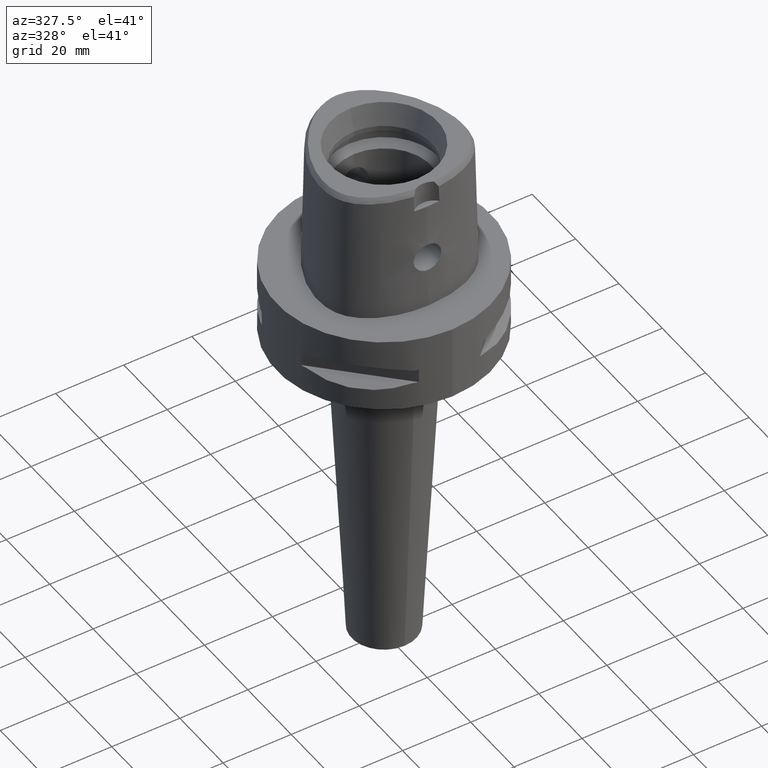
[diagram: clean part render]
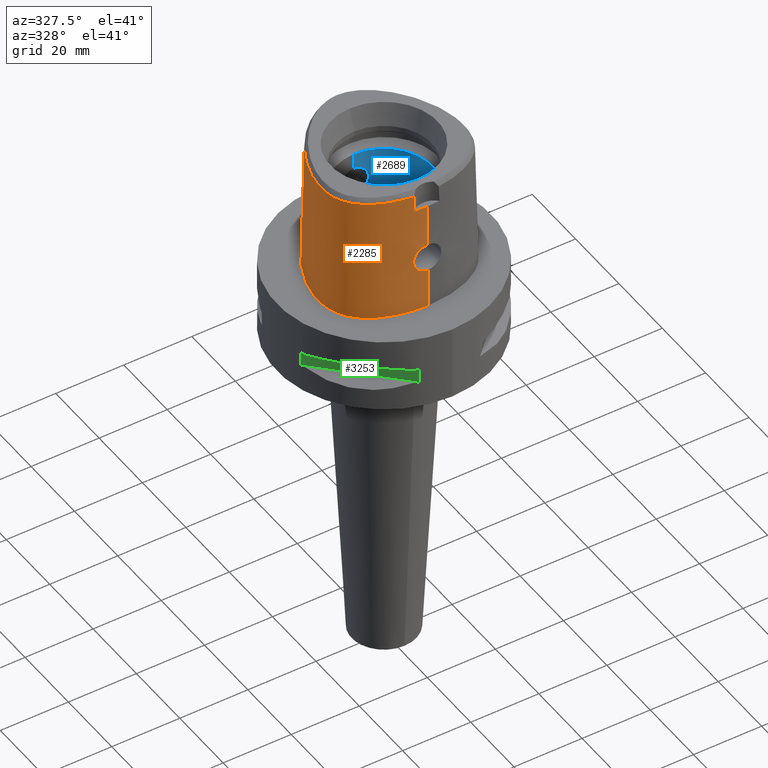
[diagram: same view with three faces highlighted in distinct colors, each labeled with its STEP entity id]
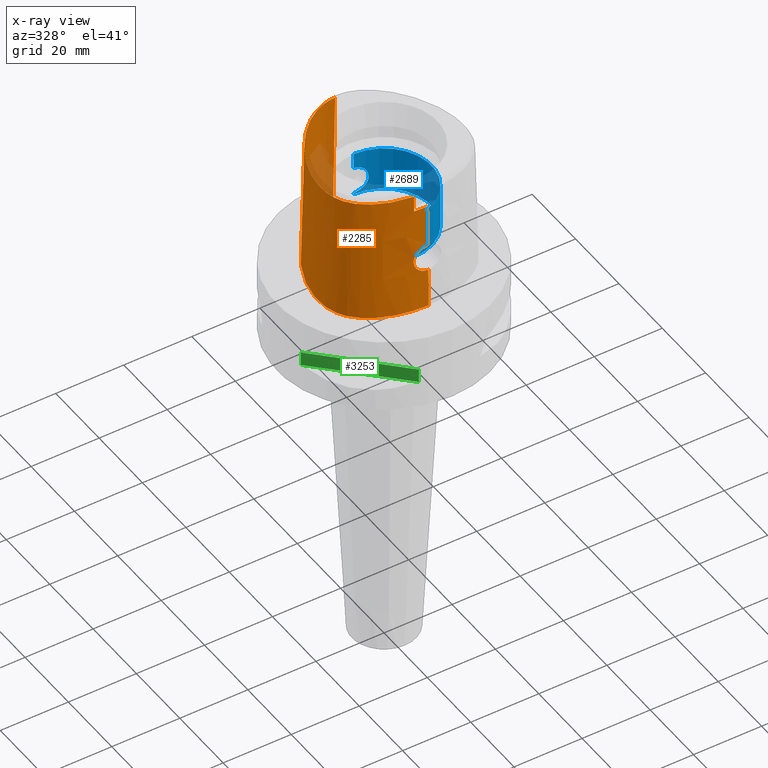
[diagram: x-ray of the same camera — body ghosted, the three highlighted faces saturated]
A machine part, auxiliary view with three faces highlighted in distinct colors.
The next image is the same camera in x-ray (body ghosted, the three faces saturated) — at least one of them is partly hidden behind the body in this view.
Their STEP definitions:

[orange] entity #2285 — the highlighted face is a freeform B-spline surface patch.
#193=CARTESIAN_POINT('',(-3.637738201364E0,-1.956971413237E1,3.652186244848E1));
#194=CARTESIAN_POINT('',(-4.537193548749E0,-1.947388025628E1,3.652183529940E1));
#195=CARTESIAN_POINT('',(-6.263949327300E0,-1.921705533810E1,3.652188275785E1));
#196=CARTESIAN_POINT('',(-8.618348519195E0,-1.866798246127E1,3.652185435558E1));
#197=CARTESIAN_POINT('',(-1.060495987192E1,-1.803591213796E1,3.652187576284E1));
#198=CARTESIAN_POINT('',(-1.237067197268E1,-1.732224180535E1,3.652186578478E1));
#199=CARTESIAN_POINT('',(-1.397879260867E1,-1.651413441729E1,3.652186958408E1));
#200=CARTESIAN_POINT('',(-1.542598734321E1,-1.561794019751E1,3.652186521884E1));
#201=CARTESIAN_POINT('',(-1.666737764108E1,-1.467523813454E1,3.652187203924E1));
#202=CARTESIAN_POINT('',(-1.770437627941E1,-1.371528573410E1,3.652187045980E1));
#203=CARTESIAN_POINT('',(-1.857115067472E1,-1.273500788223E1,3.652185855755E1));
#204=CARTESIAN_POINT('',(-1.928442601399E1,-1.174002544139E1,3.652191157147E1));
#205=CARTESIAN_POINT('',(-1.987313581598E1,-1.070549049556E1,3.652186026166E1));
#206=CARTESIAN_POINT('',(-2.036758263126E1,-9.577945777402E0,3.652186701632E1));
#207=CARTESIAN_POINT('',(-2.077211132407E1,-8.321210405634E0,3.652186884943E1));
#208=CARTESIAN_POINT('',(-2.107213951127E1,-6.924739094355E0,3.652186972068E1));
#209=CARTESIAN_POINT('',(-2.125235437077E1,-5.361729912021E0,3.652186572500E1));
#210=CARTESIAN_POINT('',(-2.128712501331E1,-3.639679101091E0,3.652187070383E1));
#211=CARTESIAN_POINT('',(-2.116359888799E1,-1.830362717074E0,3.652186160276E1));
#212=CARTESIAN_POINT('',(-2.087920510343E1,6.599433238334E-2,3.652187692161E1));
#213=CARTESIAN_POINT('',(-2.040877652441E1,2.125525189010E0,3.652185890485E1));
#214=CARTESIAN_POINT('',(-1.967274178354E1,4.473787407312E0,3.652187262732E1));
#215=CARTESIAN_POINT('',(-1.866988253956E1,6.938059692952E0,3.652184673805E1));
#216=CARTESIAN_POINT('',(-1.743962506899E1,9.380231689227E0,3.652185708733E1));
#217=CARTESIAN_POINT('',(-1.600917705974E1,1.173321275189E1,3.652187236541E1));
#218=CARTESIAN_POINT('',(-1.442910686964E1,1.391946669374E1,3.652185993652E1));
#219=CARTESIAN_POINT('',(-1.275797945687E1,1.587321322918E1,3.652186706717E1));
#220=CARTESIAN_POINT('',(-1.114966267944E1,1.746960453198E1,3.652186916644E1));
#221=CARTESIAN_POINT('',(-9.635940589058E0,1.875774927202E1,3.652186756368E1));
#222=CARTESIAN_POINT('',(-8.129315151765E0,1.984871666943E1,3.652186494854E1));
#223=CARTESIAN_POINT('',(-6.628467072847E0,2.075200188891E1,3.652187174651E1));
#224=CARTESIAN_POINT('',(-5.160069573094E0,2.146250909323E1,3.652187196217E1));
#225=CARTESIAN_POINT('',(-3.761043276653E0,2.198030969111E1,3.652186330563E1));
#226=CARTESIAN_POINT('',(-2.442989062411E0,2.232534208061E1,3.652187666147E1));
#227=CARTESIAN_POINT('',(-1.187263974777E0,2.252095610630E1,3.652179140267E1));
#228=CARTESIAN_POINT('',(-3.966403976592E-1,2.256201468012E1,3.652186680743E1));
#229=CARTESIAN_POINT('',(-1.721538145818E-11,2.256201468012E1,
3.652186680744E1));
#241=CARTESIAN_POINT('',(-3.637738201364E0,-1.956971413237E1,3.652186244848E1));
#242=CARTESIAN_POINT('',(-3.649042726833E0,-1.958170231834E1,3.599710491520E1));
#243=CARTESIAN_POINT('',(-3.671106183707E0,-1.960533297179E1,3.494764182412E1));
#244=CARTESIAN_POINT('',(-3.704089539557E0,-1.964135162194E1,3.337369009748E1));
#245=CARTESIAN_POINT('',(-3.726005756395E0,-1.966575923510E1,3.232454432382E1));
#246=CARTESIAN_POINT('',(-3.736696126116E0,-1.967778323257E1,3.18E1));
#251=DIRECTION('',(-1.665636293796E-9,-2.499140646182E-2,-9.996876660253E-1));
#252=VECTOR('',#251,1.225382733632E1);
#253=CARTESIAN_POINT('',(2.041042029991E-8,-1.988004246002E1,3.180000004972E1));
#254=LINE('',#253,#252);
#258=CARTESIAN_POINT('',(0.E0,-2.018628283969E1,1.955E1));
#259=CARTESIAN_POINT('',(-3.535025939874E-1,-2.018628283969E1,1.955E1));
#260=CARTESIAN_POINT('',(-1.060473937797E0,-2.017767216830E1,1.945681925277E1));
#261=CARTESIAN_POINT('',(-2.047701543701E0,-2.014309980526E1,1.904804674692E1));
#262=CARTESIAN_POINT('',(-2.897566485544E0,-2.009784253651E1,1.839607694624E1));
#263=CARTESIAN_POINT('',(-3.549651586842E0,-2.005725832781E1,1.754541454944E1));
#264=CARTESIAN_POINT('',(-3.958413413604E0,-2.003677385322E1,1.655463469819E1));
#265=CARTESIAN_POINT('',(-4.096145834777E0,-2.004693977811E1,1.549746639839E1));
#266=CARTESIAN_POINT('',(-3.956998654836E0,-2.009014971096E1,1.444056005517E1));
#267=CARTESIAN_POINT('',(-3.548403793674E0,-2.016023887783E1,1.345303113610E1));
#268=CARTESIAN_POINT('',(-2.897581606987E0,-2.024315417861E1,1.260386165506E1));
#269=CARTESIAN_POINT('',(-2.045567629948E0,-2.032097908031E1,1.195043067914E1));
#270=CARTESIAN_POINT('',(-1.056750709433E0,-2.037569617876E1,1.154226914409E1));
#271=CARTESIAN_POINT('',(-3.518691721555E-1,-2.038876923348E1,1.145E1));
#272=CARTESIAN_POINT('',(-9.433993878922E-13,-2.038876923348E1,1.145E1));
#277=DIRECTION('',(-5.771733058852E-13,-2.499051295390E-2,-9.996876883619E-1));
#278=VECTOR('',#277,1.145357708542E1);
#279=CARTESIAN_POINT('',(-9.433993878922E-13,-2.038876923348E1,1.145E1));
#280=LINE('',#279,#278);
#342=CARTESIAN_POINT('',(4.563156641447E-11,2.347499999999E1,
5.514107688972E-14));
#343=CARTESIAN_POINT('',(-4.146852565207E-1,2.347499999999E1,
5.514107688972E-14));
#344=CARTESIAN_POINT('',(-1.261915149561E0,2.343213451227E1,
-2.559106284495E-14));
#345=CARTESIAN_POINT('',(-2.581460452462E0,2.322967044429E1,0.E0));
#346=CARTESIAN_POINT('',(-3.964403221928E0,2.287404406542E1,0.E0));
#347=CARTESIAN_POINT('',(-5.417034934790E0,2.234557740741E1,0.E0));
#348=CARTESIAN_POINT('',(-6.944801218035E0,2.162011250783E1,0.E0));
#349=CARTESIAN_POINT('',(-8.547637702665E0,2.067041451708E1,0.E0));
#350=CARTESIAN_POINT('',(-1.021725188597E1,1.946946503500E1,0.E0));
#351=CARTESIAN_POINT('',(-1.193424410327E1,1.799512566976E1,0.E0));
#352=CARTESIAN_POINT('',(-1.366368346013E1,1.623921716908E1,0.E0));
#353=CARTESIAN_POINT('',(-1.535729558670E1,1.421339154148E1,0.E0));
#354=CARTESIAN_POINT('',(-1.695352052941E1,1.195973010079E1,0.E0));
#355=CARTESIAN_POINT('',(-1.839120765518E1,9.545070948090E0,0.E0));
#356=CARTESIAN_POINT('',(-1.962307345157E1,7.045259246555E0,0.E0));
#357=CARTESIAN_POINT('',(-2.061579824793E1,4.546574757563E0,0.E0));
#358=CARTESIAN_POINT('',(-2.135626431495E1,2.129350844778E0,0.E0));
#359=CARTESIAN_POINT('',(-2.185285452040E1,-1.499599148027E-1,0.E0));
#360=CARTESIAN_POINT('',(-2.212727618345E1,-2.257747990068E0,0.E0));
#361=CARTESIAN_POINT('',(-2.220770549127E1,-4.183060399524E0,0.E0));
#362=CARTESIAN_POINT('',(-2.212245961432E1,-5.927659577005E0,0.E0));
#363=CARTESIAN_POINT('',(-2.189663652646E1,-7.503783103471E0,0.E0));
#364=CARTESIAN_POINT('',(-2.155071218654E1,-8.926832611984E0,0.E0));
#365=CARTESIAN_POINT('',(-2.109812849038E1,-1.021628808504E1,0.E0));
#366=CARTESIAN_POINT('',(-2.055277033994E1,-1.138063298656E1,0.E0));
#367=CARTESIAN_POINT('',(-1.990340162624E1,-1.246179278733E1,0.E0));
#368=CARTESIAN_POINT('',(-1.912185559762E1,-1.350622775472E1,0.E0));
#369=CARTESIAN_POINT('',(-1.817671397480E1,-1.453624124549E1,0.E0));
#370=CARTESIAN_POINT('',(-1.705680612492E1,-1.553852109048E1,0.E0));
#371=CARTESIAN_POINT('',(-1.573604956120E1,-1.651128824165E1,0.E0));
#372=CARTESIAN_POINT('',(-1.419106097246E1,-1.744213430450E1,0.E0));
#373=CARTESIAN_POINT('',(-1.240026832212E1,-1.831297475591E1,0.E0));
#374=CARTESIAN_POINT('',(-1.035075458277E1,-1.909801402975E1,0.E0));
#375=CARTESIAN_POINT('',(-8.044393403476E0,-1.976486427995E1,0.E0));
#376=CARTESIAN_POINT('',(-5.509742625065E0,-2.027740112967E1,0.E0));
#377=CARTESIAN_POINT('',(-2.794080716861E0,-2.060118766449E1,
-2.693072922207E-14));
#378=CARTESIAN_POINT('',(-9.426230636249E-1,-2.0675E1,5.802765675374E-14));
#379=CARTESIAN_POINT('',(-7.554098338496E-12,-2.0675E1,5.802765675374E-14));
#995=DIRECTION('',(1.720265844315E-12,2.499051290963E-2,-9.996876883630E-1));
#996=VECTOR('',#995,3.653327657485E1);
#997=CARTESIAN_POINT('',(-1.721538145818E-11,2.256201468012E1,
3.652186680744E1));
#998=LINE('',#997,#996);
#1012=CARTESIAN_POINT('',(2.041042029991E-8,-1.988004246002E1,
3.180000004972E1));
#1013=CARTESIAN_POINT('',(-4.161790280178E-1,-1.988004245993E1,
3.180000004972E1));
#1014=CARTESIAN_POINT('',(-1.247889105566E0,-1.986528007158E1,
3.179999997680E1));
#1015=CARTESIAN_POINT('',(-2.494485023973E0,-1.979770229313E1,
3.180000000663E1));
#1016=CARTESIAN_POINT('',(-3.322953884429E0,-1.972294683092E1,3.18E1));
#1017=CARTESIAN_POINT('',(-3.736696126116E0,-1.967778323257E1,3.18E1));
#1461=CARTESIAN_POINT('',(-3.736722311399E0,-1.967781602444E1,3.18E1));
#1462=VERTEX_POINT('',#1461);
#1463=VERTEX_POINT('',#241);
#1464=CARTESIAN_POINT('',(-1.721538145818E-11,2.256201468012E1,
3.652186680744E1));
#1465=VERTEX_POINT('',#1464);
#1466=VERTEX_POINT('',#342);
#1467=VERTEX_POINT('',#379);
#1468=VERTEX_POINT('',#1012);
#1469=CARTESIAN_POINT('',(0.E0,-2.018628283969E1,1.955E1));
#1470=VERTEX_POINT('',#1469);
#1471=VERTEX_POINT('',#272);
#2168=CARTESIAN_POINT('',(7.234356454210E-1,2.347140593178E1,
-7.304378836923E-1));
#2169=CARTESIAN_POINT('',(7.042335227556E-1,2.315549812288E1,1.193048543364E1));
#2170=CARTESIAN_POINT('',(6.850314000902E-1,2.283959031397E1,2.459140875097E1));
#2171=CARTESIAN_POINT('',(6.658292774247E-1,2.252368250506E1,3.725233206831E1));
#2172=CARTESIAN_POINT('',(4.823619559444E-1,2.348603818724E1,
-7.304378836923E-1));
#2173=CARTESIAN_POINT('',(4.696382013995E-1,2.316972797308E1,1.193048543364E1));
#2174=CARTESIAN_POINT('',(4.569144468547E-1,2.285341775891E1,2.459140875097E1));
#2175=CARTESIAN_POINT('',(4.441906923099E-1,2.253710754475E1,3.725233206831E1));
#2176=CARTESIAN_POINT('',(-6.149727129627E-1,2.351889465440E1,
-7.304378836923E-1));
#2177=CARTESIAN_POINT('',(-5.985508142242E-1,2.320171269472E1,
1.193048543364E1));
#2178=CARTESIAN_POINT('',(-5.821289154857E-1,2.288453073505E1,
2.459140875097E1));
#2179=CARTESIAN_POINT('',(-5.657070167472E-1,2.256734877538E1,
3.725233206831E1));
#2180=CARTESIAN_POINT('',(-2.568271206828E0,2.331126238893E1,
-7.304378836923E-1));
#2181=CARTESIAN_POINT('',(-2.503210889068E0,2.299958931414E1,1.193048543364E1));
#2182=CARTESIAN_POINT('',(-2.438150571309E0,2.268791623936E1,2.459140875097E1));
#2183=CARTESIAN_POINT('',(-2.373090253549E0,2.237624316457E1,3.725233206831E1));
#2184=CARTESIAN_POINT('',(-5.105252918009E0,2.254305024715E1,
-7.304378836923E-1));
#2185=CARTESIAN_POINT('',(-4.987110638771E0,2.224795273405E1,1.193048543364E1));
#2186=CARTESIAN_POINT('',(-4.868968359533E0,2.195285522095E1,2.459140875097E1));
#2187=CARTESIAN_POINT('',(-4.750826080296E0,2.165775770785E1,3.725233206831E1));
#2188=CARTESIAN_POINT('',(-7.580410842742E0,2.133037926732E1,
-7.304378836923E-1));
#2189=CARTESIAN_POINT('',(-7.420053097307E0,2.105635738375E1,1.193048543364E1));
#2190=CARTESIAN_POINT('',(-7.259695351873E0,2.078233550017E1,2.459140875097E1));
#2191=CARTESIAN_POINT('',(-7.099337606439E0,2.050831361659E1,3.725233206831E1));
#2192=CARTESIAN_POINT('',(-1.075753574145E1,1.918839676145E1,
-7.304378836923E-1));
#2193=CARTESIAN_POINT('',(-1.055288400653E1,1.894467581299E1,1.193048543364E1));
#2194=CARTESIAN_POINT('',(-1.034823227161E1,1.870095486453E1,2.459140875097E1));
#2195=CARTESIAN_POINT('',(-1.014358053668E1,1.845723391608E1,3.725233206831E1));
#2196=CARTESIAN_POINT('',(-1.442198652394E1,1.565278600583E1,
-7.304378836923E-1));
#2197=CARTESIAN_POINT('',(-1.417879752835E1,1.544741190468E1,1.193048543364E1));
#2198=CARTESIAN_POINT('',(-1.393560853276E1,1.524203780353E1,2.459140875097E1));
#2199=CARTESIAN_POINT('',(-1.369241953717E1,1.503666370237E1,3.725233206831E1));
#2200=CARTESIAN_POINT('',(-1.808416038762E1,1.044089487470E1,
-7.304378836923E-1));
#2201=CARTESIAN_POINT('',(-1.780867301356E1,1.028184204664E1,1.193048543364E1));
#2202=CARTESIAN_POINT('',(-1.753318563950E1,1.012278921858E1,2.459140875097E1));
#2203=CARTESIAN_POINT('',(-1.725769826544E1,9.963736390518E0,3.725233206831E1));
#2204=CARTESIAN_POINT('',(-2.076670355397E1,4.663413655735E0,
-7.304378836923E-1));
#2205=CARTESIAN_POINT('',(-2.046725037104E1,4.555493623004E0,1.193048543364E1));
#2206=CARTESIAN_POINT('',(-2.016779718812E1,4.447573590274E0,2.459140875097E1));
#2207=CARTESIAN_POINT('',(-1.986834400520E1,4.339653557543E0,3.725233206831E1));
#2208=CARTESIAN_POINT('',(-2.199640702100E1,-2.778990153336E-1,
-7.304378836923E-1));
#2209=CARTESIAN_POINT('',(-2.168301094001E1,-3.332744162193E-1,
1.193048543364E1));
#2210=CARTESIAN_POINT('',(-2.136961485902E1,-3.886498171051E-1,
2.459140875097E1));
#2211=CARTESIAN_POINT('',(-2.105621877803E1,-4.440252179909E-1,
3.725233206831E1));
#2212=CARTESIAN_POINT('',(-2.226285557050E1,-4.100361500019E0,
-7.304378836923E-1));
#2213=CARTESIAN_POINT('',(-2.194536970998E1,-4.102220499691E0,
1.193048543364E1));
#2214=CARTESIAN_POINT('',(-2.162788384945E1,-4.104079499363E0,
2.459140875097E1));
#2215=CARTESIAN_POINT('',(-2.131039798893E1,-4.105938499035E0,
3.725233206831E1));
#2216=CARTESIAN_POINT('',(-2.207548129619E1,-6.850245536214E0,
-7.304378836923E-1));
#2217=CARTESIAN_POINT('',(-2.176083704478E1,-6.805026033501E0,
1.193048543364E1));
#2218=CARTESIAN_POINT('',(-2.144619279338E1,-6.759806530788E0,
2.459140875097E1));
#2219=CARTESIAN_POINT('',(-2.113154854198E1,-6.714587028075E0,
3.725233206831E1));
#2220=CARTESIAN_POINT('',(-2.157281239753E1,-9.001246196645E0,
-7.304378836923E-1));
#2221=CARTESIAN_POINT('',(-2.126836734855E1,-8.910752225629E0,
1.193048543364E1));
#2222=CARTESIAN_POINT('',(-2.096392229957E1,-8.820258254612E0,
2.459140875097E1));
#2223=CARTESIAN_POINT('',(-2.065947725059E1,-8.729764283595E0,
3.725233206831E1));
#2224=CARTESIAN_POINT('',(-2.094844326333E1,-1.061175397207E1,
-7.304378836923E-1));
#2225=CARTESIAN_POINT('',(-2.065879041560E1,-1.048283616462E1,
1.193048543364E1));
#2226=CARTESIAN_POINT('',(-2.036913756787E1,-1.035391835717E1,
2.459140875097E1));
#2227=CARTESIAN_POINT('',(-2.007948472015E1,-1.022500054972E1,
3.725233206831E1));
#2228=CARTESIAN_POINT('',(-2.036546124956E1,-1.175800453463E1,
-7.304378836923E-1));
#2229=CARTESIAN_POINT('',(-2.009084467378E1,-1.159945458008E1,
1.193048543364E1));
#2230=CARTESIAN_POINT('',(-1.981622809799E1,-1.144090462553E1,
2.459140875097E1));
#2231=CARTESIAN_POINT('',(-1.954161152221E1,-1.128235467098E1,
3.725233206831E1));
#2232=CARTESIAN_POINT('',(-1.966427015040E1,-1.283600704974E1,
-7.304378836923E-1));
#2233=CARTESIAN_POINT('',(-1.940779762651E1,-1.264961922928E1,
1.193048543364E1));
#2234=CARTESIAN_POINT('',(-1.915132510263E1,-1.246323140882E1,
2.459140875097E1));
#2235=CARTESIAN_POINT('',(-1.889485257874E1,-1.227684358836E1,
3.725233206831E1));
#2236=CARTESIAN_POINT('',(-1.858171406959E1,-1.418198046903E1,
-7.304378836923E-1));
#2237=CARTESIAN_POINT('',(-1.835112148799E1,-1.396357030797E1,
1.193048543364E1));
#2238=CARTESIAN_POINT('',(-1.812052890639E1,-1.374516014692E1,
2.459140875097E1));
#2239=CARTESIAN_POINT('',(-1.788993632479E1,-1.352674998587E1,
3.725233206831E1));
#2240=CARTESIAN_POINT('',(-1.697022731427E1,-1.569280483517E1,
-7.304378836923E-1));
#2241=CARTESIAN_POINT('',(-1.677374378320E1,-1.544292467129E1,
1.193048543364E1));
#2242=CARTESIAN_POINT('',(-1.657726025214E1,-1.519304450741E1,
2.459140875097E1));
#2243=CARTESIAN_POINT('',(-1.638077672108E1,-1.494316434353E1,
3.725233206831E1));
#2244=CARTESIAN_POINT('',(-1.468244497373E1,-1.723001773474E1,
-7.304378836923E-1));
#2245=CARTESIAN_POINT('',(-1.452531259520E1,-1.695413741586E1,
1.193048543364E1));
#2246=CARTESIAN_POINT('',(-1.436818021668E1,-1.667825709698E1,
2.459140875097E1));
#2247=CARTESIAN_POINT('',(-1.421104783816E1,-1.640237677809E1,
3.725233206831E1));
#2248=CARTESIAN_POINT('',(-1.123887130428E1,-1.891049776497E1,
-7.304378836923E-1));
#2249=CARTESIAN_POINT('',(-1.113012652954E1,-1.861140108889E1,
1.193048543364E1));
#2250=CARTESIAN_POINT('',(-1.102138175480E1,-1.831230441280E1,
2.459140875097E1));
#2251=CARTESIAN_POINT('',(-1.091263698006E1,-1.801320773672E1,
3.725233206831E1));
#2252=CARTESIAN_POINT('',(-6.344715577603E0,-2.031619965472E1,
-7.304378836923E-1));
#2253=CARTESIAN_POINT('',(-6.288476565481E0,-2.000290563965E1,
1.193048543364E1));
#2254=CARTESIAN_POINT('',(-6.232237553359E0,-1.968961162457E1,
2.459140875097E1));
#2255=CARTESIAN_POINT('',(-6.175998541237E0,-1.937631760950E1,
3.725233206831E1));
#2256=CARTESIAN_POINT('',(-1.886862292502E0,-2.071358860422E1,
-7.304378836923E-1));
#2257=CARTESIAN_POINT('',(-1.870070487669E0,-2.039691384293E1,
1.193048543364E1));
#2258=CARTESIAN_POINT('',(-1.853278682835E0,-2.008023908163E1,
2.459140875097E1));
#2259=CARTESIAN_POINT('',(-1.836486878001E0,-1.976356432033E1,
3.725233206831E1));
#2260=CARTESIAN_POINT('',(4.560943670760E-1,-2.069106768990E1,
-7.304378836923E-1));
#2261=CARTESIAN_POINT('',(4.520368071274E-1,-2.037458452300E1,
1.193048543364E1));
#2262=CARTESIAN_POINT('',(4.479792471788E-1,-2.005810135610E1,
2.459140875097E1));
#2263=CARTESIAN_POINT('',(4.439216872302E-1,-1.974161818921E1,
3.725233206831E1));
#2264=CARTESIAN_POINT('',(6.840430854547E-1,-2.068668155497E1,
-7.304378836923E-1));
#2265=CARTESIAN_POINT('',(6.779535327048E-1,-2.037023514139E1,
1.193048543364E1));
#2266=CARTESIAN_POINT('',(6.718639799549E-1,-2.005378872781E1,
2.459140875097E1));
#2267=CARTESIAN_POINT('',(6.657744272050E-1,-1.973734231423E1,
3.725233206831E1));
#2268=B_SPLINE_SURFACE_WITH_KNOTS('',3,3,((#2168,#2169,#2170,#2171),(#2172,
#2173,#2174,#2175),(#2176,#2177,#2178,#2179),(#2180,#2181,#2182,#2183),(#2184,
#2185,#2186,#2187),(#2188,#2189,#2190,#2191),(#2192,#2193,#2194,#2195),(#2196,
#2197,#2198,#2199),(#2200,#2201,#2202,#2203),(#2204,#2205,#2206,#2207),(#2208,
#2209,#2210,#2211),(#2212,#2213,#2214,#2215),(#2216,#2217,#2218,#2219),(#2220,
#2221,#2222,#2223),(#2224,#2225,#2226,#2227),(#2228,#2229,#2230,#2231),(#2232,
#2233,#2234,#2235),(#2236,#2237,#2238,#2239),(#2240,#2241,#2242,#2243),(#2244,
#2245,#2246,#2247),(#2248,#2249,#2250,#2251),(#2252,#2253,#2254,#2255),(#2256,
#2257,#2258,#2259),(#2260,#2261,#2262,#2263),(#2264,#2265,#2266,#2267)),
.UNSPECIFIED.,.F.,.F.,.F.,(4,1,1,1,1,1,1,1,1,1,1,1,1,1,1,1,1,1,1,1,1,1,4),(4,4),
(-1.173777939046E-2,0.E0,4.166666666737E-2,8.333333333399E-2,1.250000000006E-1,
1.666666666673E-1,2.500000000005E-1,3.333333333337E-1,4.166666666670E-1,
5.000000000003E-1,5.416666666669E-1,5.833333333335E-1,6.250000000001E-1,
6.458333333334E-1,6.666666666668E-1,6.875000000001E-1,7.083333333333E-1,7.5E-1,
7.916666666667E-1,8.333333333332E-1,9.166666666665E-1,1.E0,1.008985696609E0),(
-3.979829035772E-9,1.000000202971E0),.UNSPECIFIED.);
#2270=ORIENTED_EDGE('',*,*,#2269,.F.);
#2272=ORIENTED_EDGE('',*,*,#2271,.F.);
#2273=ORIENTED_EDGE('',*,*,#2161,.F.);
#2274=ORIENTED_EDGE('',*,*,#1646,.T.);
#2276=ORIENTED_EDGE('',*,*,#2275,.F.);
#2278=ORIENTED_EDGE('',*,*,#2277,.T.);
#2280=ORIENTED_EDGE('',*,*,#2279,.T.);
#2282=ORIENTED_EDGE('',*,*,#2281,.T.);
#2283=EDGE_LOOP('',(#2270,#2272,#2273,#2274,#2276,#2278,#2280,#2282));
#2284=FACE_OUTER_BOUND('',#2283,.F.);
#230=B_SPLINE_CURVE_WITH_KNOTS('',3,(#193,#194,#195,#196,#197,#198,#199,#200,
#201,#202,#203,#204,#205,#206,#207,#208,#209,#210,#211,#212,#213,#214,#215,#216,
#217,#218,#219,#220,#221,#222,#223,#224,#225,#226,#227,#228,#229),.UNSPECIFIED.,
.F.,.F.,(4,1,1,1,1,1,1,1,1,1,1,1,1,1,1,1,1,1,1,1,1,1,1,1,1,1,1,1,1,1,1,1,1,1,4),
(0.E0,2.941176470588E-2,5.882352941176E-2,8.823529411765E-2,1.176470588235E-1,
1.470588235294E-1,1.764705882353E-1,2.058823529412E-1,2.352941176471E-1,
2.647058823529E-1,2.941176470588E-1,3.235294117647E-1,3.529411764706E-1,
3.823529411765E-1,4.117647058824E-1,4.411764705882E-1,4.705882352941E-1,5.E-1,
5.294117647059E-1,5.588235294118E-1,5.882352941176E-1,6.176470588235E-1,
6.470588235294E-1,6.764705882353E-1,7.058823529412E-1,7.352941176471E-1,
7.647058823529E-1,7.941176470588E-1,8.235294117647E-1,8.529411764706E-1,
8.823529411765E-1,9.117647058824E-1,9.411764705882E-1,9.705882352941E-1,1.E0),
.UNSPECIFIED.);
#247=B_SPLINE_CURVE_WITH_KNOTS('',3,(#241,#242,#243,#244,#245,#246),
.UNSPECIFIED.,.F.,.F.,(4,1,1,4),(0.E0,3.333333333333E-1,6.666666666667E-1,1.E0),
.UNSPECIFIED.);
#273=B_SPLINE_CURVE_WITH_KNOTS('',3,(#258,#259,#260,#261,#262,#263,#264,#265,
#266,#267,#268,#269,#270,#271,#272),.UNSPECIFIED.,.F.,.F.,(4,1,1,1,1,1,1,1,1,1,
1,1,4),(0.E0,8.333333333333E-2,1.666666666667E-1,2.5E-1,3.333333333333E-1,
4.166666666667E-1,5.E-1,5.833333333333E-1,6.666666666667E-1,7.5E-1,
8.333333333333E-1,9.166666666667E-1,1.E0),.UNSPECIFIED.);
#380=B_SPLINE_CURVE_WITH_KNOTS('',3,(#342,#343,#344,#345,#346,#347,#348,#349,
#350,#351,#352,#353,#354,#355,#356,#357,#358,#359,#360,#361,#362,#363,#364,#365,
#366,#367,#368,#369,#370,#371,#372,#373,#374,#375,#376,#377,#378,#379),
.UNSPECIFIED.,.F.,.F.,(4,1,1,1,1,1,1,1,1,1,1,1,1,1,1,1,1,1,1,1,1,1,1,1,1,1,1,1,
1,1,1,1,1,1,1,4),(0.E0,2.857142857143E-2,5.714285714286E-2,8.571428571429E-2,
1.142857142857E-1,1.428571428571E-1,1.714285714286E-1,2.E-1,2.285714285714E-1,
2.571428571429E-1,2.857142857143E-1,3.142857142857E-1,3.428571428571E-1,
3.714285714286E-1,4.E-1,4.285714285714E-1,4.571428571429E-1,4.857142857143E-1,
5.142857142857E-1,5.428571428571E-1,5.714285714286E-1,6.E-1,6.285714285714E-1,
6.571428571429E-1,6.857142857143E-1,7.142857142857E-1,7.428571428571E-1,
7.714285714286E-1,8.E-1,8.285714285714E-1,8.571428571429E-1,8.857142857143E-1,
9.142857142857E-1,9.428571428571E-1,9.714285714286E-1,1.E0),.UNSPECIFIED.);
#1018=B_SPLINE_CURVE_WITH_KNOTS('',3,(#1012,#1013,#1014,#1015,#1016,#1017),
.UNSPECIFIED.,.F.,.F.,(4,1,1,4),(0.E0,3.333333333333E-1,6.666666666667E-1,1.E0),
.UNSPECIFIED.);
#1646=EDGE_CURVE('',#1463,#1462,#247,.T.);
#2161=EDGE_CURVE('',#1463,#1465,#230,.T.);
#2269=EDGE_CURVE('',#1466,#1467,#380,.T.);
#2271=EDGE_CURVE('',#1465,#1466,#998,.T.);
#2275=EDGE_CURVE('',#1468,#1462,#1018,.T.);
#2277=EDGE_CURVE('',#1468,#1470,#254,.T.);
#2279=EDGE_CURVE('',#1470,#1471,#273,.T.);
#2281=EDGE_CURVE('',#1471,#1467,#280,.T.);
#2285=ADVANCED_FACE('',(#2284),#2268,.T.);

[blue] entity #2689 — the highlighted cylindrical surface (partial cylindrical patch) has radius 14 mm, axis along (0, 0, -1).
#802=CARTESIAN_POINT('',(0.E0,0.E0,1.1E1));
#803=DIRECTION('',(0.E0,0.E0,-1.E0));
#804=DIRECTION('',(0.E0,1.E0,0.E0));
#805=AXIS2_PLACEMENT_3D('',#802,#803,#804);
#834=CARTESIAN_POINT('',(0.E0,1.4E1,1.145E1));
#835=CARTESIAN_POINT('',(3.549651718936E-1,1.4E1,1.145E1));
#836=CARTESIAN_POINT('',(1.042797089629E0,1.397338647428E1,1.154075500503E1));
#837=CARTESIAN_POINT('',(2.026106715516E0,1.386340734447E1,1.193885279298E1));
#838=CARTESIAN_POINT('',(2.888554503126E0,1.370625087655E1,1.259384709830E1));
#839=CARTESIAN_POINT('',(3.547232682473E0,1.354690259281E1,1.344810987420E1));
#840=CARTESIAN_POINT('',(3.961288560120E0,1.342876781251E1,1.445390490240E1));
#841=CARTESIAN_POINT('',(4.094552111593E0,1.338766158589E1,1.550312663362E1));
#842=CARTESIAN_POINT('',(3.960504331047E0,1.342898052380E1,1.654394793318E1));
#843=CARTESIAN_POINT('',(3.555598630920E0,1.354452875512E1,1.753449013033E1));
#844=CARTESIAN_POINT('',(2.909074612499E0,1.370175179262E1,1.838539835100E1));
#845=CARTESIAN_POINT('',(2.045679309848E0,1.386078650950E1,1.905154300997E1));
#846=CARTESIAN_POINT('',(1.047312010260E0,1.397334419497E1,1.945916717971E1));
#847=CARTESIAN_POINT('',(3.562137686671E-1,1.4E1,1.955E1));
#848=CARTESIAN_POINT('',(0.E0,1.4E1,1.955E1));
#853=DIRECTION('',(0.E0,0.E0,1.E0));
#854=VECTOR('',#853,4.65E0);
#855=CARTESIAN_POINT('',(0.E0,1.4E1,1.955E1));
#856=LINE('',#855,#854);
#860=CARTESIAN_POINT('',(0.E0,-1.4E1,1.955E1));
#861=CARTESIAN_POINT('',(3.549456415254E-1,-1.4E1,1.955E1));
#862=CARTESIAN_POINT('',(1.042755149186E0,-1.397339023816E1,1.945925827148E1));
#863=CARTESIAN_POINT('',(2.026125000261E0,-1.386340586572E1,1.906114175543E1));
#864=CARTESIAN_POINT('',(2.888592168343E0,-1.370624305776E1,1.840612105234E1));
#865=CARTESIAN_POINT('',(3.547274777173E0,-1.354689139205E1,1.755181374308E1));
#866=CARTESIAN_POINT('',(3.961300638155E0,-1.342876400422E1,1.654605542886E1));
#867=CARTESIAN_POINT('',(4.094550587952E0,-1.338766213502E1,1.549677546474E1));
#868=CARTESIAN_POINT('',(3.960498217437E0,-1.342898217490E1,1.445606566895E1));
#869=CARTESIAN_POINT('',(3.555625225112E0,-1.354452142212E1,1.346555660886E1));
#870=CARTESIAN_POINT('',(2.909097885894E0,-1.370174742737E1,1.261461966040E1));
#871=CARTESIAN_POINT('',(2.045678311923E0,-1.386078641754E1,1.194845716965E1));
#872=CARTESIAN_POINT('',(1.047344034065E0,-1.397334143508E1,1.154084248115E1));
#873=CARTESIAN_POINT('',(3.562269046704E-1,-1.4E1,1.145E1));
#874=CARTESIAN_POINT('',(0.E0,-1.4E1,1.145E1));
#879=DIRECTION('',(0.E0,0.E0,1.E0));
#880=VECTOR('',#879,4.5E-1);
#881=CARTESIAN_POINT('',(0.E0,1.4E1,1.1E1));
#882=LINE('',#881,#880);
#919=DIRECTION('',(0.E0,0.E0,1.E0));
#920=VECTOR('',#919,4.65E0);
#921=CARTESIAN_POINT('',(0.E0,-1.4E1,1.955E1));
#922=LINE('',#921,#920);
#945=DIRECTION('',(0.E0,0.E0,1.E0));
#946=VECTOR('',#945,4.5E-1);
#947=CARTESIAN_POINT('',(0.E0,-1.4E1,1.1E1));
#948=LINE('',#947,#946);
#1061=CARTESIAN_POINT('',(0.E0,0.E0,2.42E1));
#1062=DIRECTION('',(0.E0,0.E0,1.E0));
#1063=DIRECTION('',(0.E0,-1.E0,0.E0));
#1064=AXIS2_PLACEMENT_3D('',#1061,#1062,#1063);
#1576=CARTESIAN_POINT('',(0.E0,1.4E1,1.1E1));
#1577=CARTESIAN_POINT('',(0.E0,-1.4E1,1.1E1));
#1578=VERTEX_POINT('',#1576);
#1579=VERTEX_POINT('',#1577);
#1580=VERTEX_POINT('',#834);
#1581=VERTEX_POINT('',#848);
#1582=CARTESIAN_POINT('',(0.E0,1.4E1,2.42E1));
#1583=VERTEX_POINT('',#1582);
#1584=CARTESIAN_POINT('',(0.E0,-1.4E1,2.42E1));
#1585=VERTEX_POINT('',#1584);
#1586=CARTESIAN_POINT('',(0.E0,-1.4E1,1.955E1));
#1587=VERTEX_POINT('',#1586);
#1588=VERTEX_POINT('',#874);
#2667=CARTESIAN_POINT('',(0.E0,0.E0,3.99E1));
#2668=DIRECTION('',(0.E0,0.E0,-1.E0));
#2669=DIRECTION('',(0.E0,-1.E0,0.E0));
#2670=AXIS2_PLACEMENT_3D('',#2667,#2668,#2669);
#2671=CYLINDRICAL_SURFACE('',#2670,1.4E1);
#2673=ORIENTED_EDGE('',*,*,#2672,.T.);
#2675=ORIENTED_EDGE('',*,*,#2674,.T.);
#2677=ORIENTED_EDGE('',*,*,#2676,.F.);
#2679=ORIENTED_EDGE('',*,*,#2678,.F.);
#2681=ORIENTED_EDGE('',*,*,#2680,.T.);
#2683=ORIENTED_EDGE('',*,*,#2682,.F.);
#2684=ORIENTED_EDGE('',*,*,#2656,.F.);
#2686=ORIENTED_EDGE('',*,*,#2685,.T.);
#2687=EDGE_LOOP('',(#2673,#2675,#2677,#2679,#2681,#2683,#2684,#2686));
#2688=FACE_OUTER_BOUND('',#2687,.F.);
#806=CIRCLE('',#805,1.4E1);
#849=B_SPLINE_CURVE_WITH_KNOTS('',3,(#834,#835,#836,#837,#838,#839,#840,#841,
#842,#843,#844,#845,#846,#847,#848),.UNSPECIFIED.,.F.,.F.,(4,1,1,1,1,1,1,1,1,1,
1,1,4),(0.E0,8.333333333333E-2,1.666666666667E-1,2.5E-1,3.333333333333E-1,
4.166666666667E-1,5.E-1,5.833333333333E-1,6.666666666667E-1,7.5E-1,
8.333333333333E-1,9.166666666667E-1,1.E0),.UNSPECIFIED.);
#875=B_SPLINE_CURVE_WITH_KNOTS('',3,(#860,#861,#862,#863,#864,#865,#866,#867,
#868,#869,#870,#871,#872,#873,#874),.UNSPECIFIED.,.F.,.F.,(4,1,1,1,1,1,1,1,1,1,
1,1,4),(0.E0,8.333333333333E-2,1.666666666667E-1,2.5E-1,3.333333333333E-1,
4.166666666667E-1,5.E-1,5.833333333333E-1,6.666666666667E-1,7.5E-1,
8.333333333333E-1,9.166666666667E-1,1.E0),.UNSPECIFIED.);
#1065=CIRCLE('',#1064,1.4E1);
#2656=EDGE_CURVE('',#1578,#1579,#806,.T.);
#2672=EDGE_CURVE('',#1580,#1581,#849,.T.);
#2674=EDGE_CURVE('',#1581,#1583,#856,.T.);
#2676=EDGE_CURVE('',#1585,#1583,#1065,.T.);
#2678=EDGE_CURVE('',#1587,#1585,#922,.T.);
#2680=EDGE_CURVE('',#1587,#1588,#875,.T.);
#2682=EDGE_CURVE('',#1579,#1588,#948,.T.);
#2685=EDGE_CURVE('',#1578,#1580,#882,.T.);
#2689=ADVANCED_FACE('',(#2688),#2671,.F.);

[green] entity #3253 — the highlighted planar face has unit normal (0.7071, 0.7071, 0).
#438=DIRECTION('',(0.E0,0.E0,-1.E0));
#439=VECTOR('',#438,4.1E0);
#440=CARTESIAN_POINT('',(-3.019251670572E1,-8.981198972017E0,-9.95E0));
#441=LINE('',#440,#439);
#456=DIRECTION('',(0.E0,0.E0,1.E0));
#457=VECTOR('',#456,4.1E0);
#458=CARTESIAN_POINT('',(-8.981198972017E0,-3.019251670572E1,-1.405E1));
#459=LINE('',#458,#457);
#1409=DIRECTION('',(7.071067811865E-1,-7.071067811865E-1,0.E0));
#1410=VECTOR('',#1409,2.999733321480E1);
#1411=CARTESIAN_POINT('',(-3.019251670572E1,-8.981198972017E0,-9.95E0));
#1412=LINE('',#1411,#1410);
#1432=DIRECTION('',(7.071067811865E-1,-7.071067811865E-1,0.E0));
#1433=VECTOR('',#1432,2.999733321480E1);
#1434=CARTESIAN_POINT('',(-3.019251670572E1,-8.981198972017E0,-1.405E1));
#1435=LINE('',#1434,#1433);
#1495=CARTESIAN_POINT('',(-3.019251670572E1,-8.981198972020E0,-9.95E0));
#1496=VERTEX_POINT('',#1495);
#1497=CARTESIAN_POINT('',(-3.019251670572E1,-8.981198972017E0,-1.405E1));
#1498=VERTEX_POINT('',#1497);
#1502=CARTESIAN_POINT('',(-8.981198972020E0,-3.019251670572E1,-1.405E1));
#1503=VERTEX_POINT('',#1502);
#1504=CARTESIAN_POINT('',(-8.981198972017E0,-3.019251670572E1,-9.95E0));
#1505=VERTEX_POINT('',#1504);
#3241=CARTESIAN_POINT('',(-1.909188309204E0,-3.726452736853E1,-9.95E0));
#3242=DIRECTION('',(7.071067811865E-1,7.071067811865E-1,0.E0));
#3243=DIRECTION('',(0.E0,0.E0,-1.E0));
#3244=AXIS2_PLACEMENT_3D('',#3241,#3242,#3243);
#3245=PLANE('',#3244);
#3246=ORIENTED_EDGE('',*,*,#2347,.F.);
#3248=ORIENTED_EDGE('',*,*,#3247,.F.);
#3249=ORIENTED_EDGE('',*,*,#2339,.F.);
#3250=ORIENTED_EDGE('',*,*,#3234,.T.);
#3251=EDGE_LOOP('',(#3246,#3248,#3249,#3250));
#3252=FACE_OUTER_BOUND('',#3251,.F.);
#2339=EDGE_CURVE('',#1496,#1498,#441,.T.);
#2347=EDGE_CURVE('',#1503,#1505,#459,.T.);
#3234=EDGE_CURVE('',#1496,#1505,#1412,.T.);
#3247=EDGE_CURVE('',#1498,#1503,#1435,.T.);
#3253=ADVANCED_FACE('',(#3252),#3245,.F.);